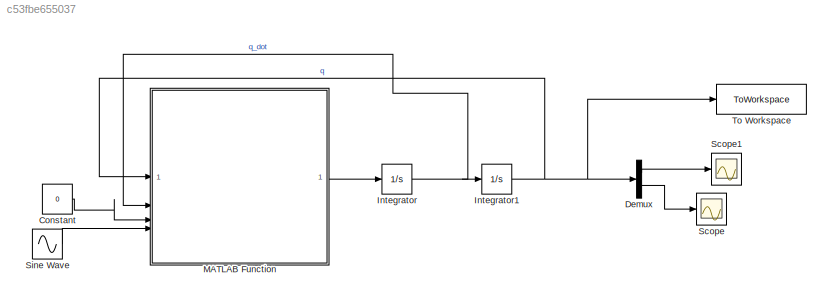
MODEL slx_c53fbe655037
KIND model
CONFIG AbsTol = auto
CONFIG EnableMultiTasking = off
CONFIG FixedStep = 0.1
CONFIG MaxStep = auto
CONFIG MinStep = auto
CONFIG RelTol = 1e-3
CONFIG SampleTimeConstraint = Unconstrained
CONFIG SolverName = ode4
CONFIG StartTime = 0.0
CONFIG StopTime = 130
BLOCK [Constant] Constant
  Value = 0
BLOCK [Demux] Demux
  Outputs = 2
BLOCK [Integrator] Integrator
  InitialCondition = [0,0]
BLOCK [Integrator] Integrator1
  InitialCondition = [12.5,pi/2]
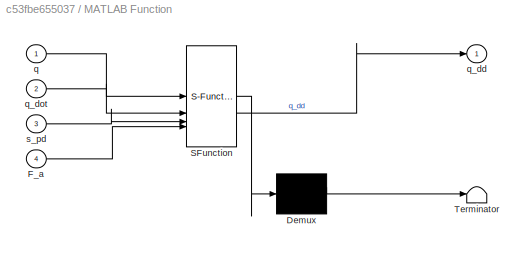
BLOCK [SubSystem] MATLAB Function
  ErrorFcn = Stateflow.Translate.translate
  PermitHierarchicalResolution = ExplicitOnly
  SFBlockType = MATLAB Function
  TreatAsAtomicUnit = on
BLOCK [Demux] MATLAB Function/ Demux 
  Outputs = 1
BLOCK [S-Function] MATLAB Function/ SFunction 
  EnableBusSupport = off
  FunctionName = sf_sfun
  PortCounts = [4 2]
  SFcnIsStateOwnerBlock = off
  SFunctionDeploymentMode = off
  Tag = Stateflow S-Function 2
BLOCK [Terminator] MATLAB Function/ Terminator 
BLOCK [Inport] MATLAB Function/F_a
  Port = 4
BLOCK [Inport] MATLAB Function/q
BLOCK [Outport] MATLAB Function/q_dd
BLOCK [Inport] MATLAB Function/q_dot
  Port = 2
BLOCK [Inport] MATLAB Function/s_pd
  Port = 3
BLOCK [Scope] Scope
  ActiveDisplayYMaximum = 2.7415169332414377
  ActiveDisplayYMinimum = 0.23732835305582234
  Floating = off
  GraphicalSettings = {"Style":{"BackgroundColor":[0.12941176470588237,0.12941176470588237,0.12941176470588237],"AxesColor":[0.07058823529411765,0.07058823529411765,0.07058823529411765],"LabelsColor":[0.8509803921568627,0.8509803921568627,0.8509803921568627],"PreserveColors":false,"Visible":[true],"LineStyle":["-"],"LineWidth":[1.5],"BarWidth":[0.9],"LineColor":["auto"],"LineFaceAlpha":[1],"LineEdgeAlpha":[1],"Marker":...<+1967ch>
  MultipleDisplayCache = [{"MaxYLimMag":10,"MaxYLimReal":2.7415169332414377,"MinYLimMag":0,"MinYLimReal":0.23732835305582234,"PlotAsMagnitudePhase":false,"ShowGrid":true,"ShowLegend":false,"Title":"%<SignalLabel>","YLabel":""}]
  NumInputPorts = 1
  ScopeFrameLocation = window
  WasSavedAsWebScope = on
  WindowPosition = [511.000000,392.000000,560.000000,420.000000,]
BLOCK [Scope] Scope1
  ActiveDisplayYMaximum = 20.676675460256966
  ActiveDisplayYMinimum = 12.081735137627959
  DataLoggingVariableName = ScopeData1
  Floating = off
  GraphicalSettings = {"Style":{"BackgroundColor":[0.12941176470588237,0.12941176470588237,0.12941176470588237],"AxesColor":[0.07058823529411765,0.07058823529411765,0.07058823529411765],"LabelsColor":[0.8509803921568627,0.8509803921568627,0.8509803921568627],"PreserveColors":false,"Visible":[true],"LineStyle":["-"],"LineWidth":[1.5],"BarWidth":[0.9],"LineColor":["auto"],"LineFaceAlpha":[1],"LineEdgeAlpha":[1],"Marker":...<+2031ch>
  MultipleDisplayCache = [{"MaxYLimMag":12.180135566241473,"MaxYLimReal":20.676675460256966,"MinYLimMag":11.125498561634615,"MinYLimReal":12.081735137627959,"PlotAsMagnitudePhase":false,"ShowGrid":true,"ShowLegend":false,"Title":"%<SignalLabel>","YLabel":""}]
  NumInputPorts = 1
  ScopeFrameLocation = window
  WasSavedAsWebScope = on
  WindowPosition = [836.000000,508.000000,560.000000,420.000000,]
BLOCK [Sin] Sine Wave
  Amplitude = 1500
  Frequency = 1.1096
  SampleTime = 0
BLOCK [ToWorkspace] To Workspace
  FixptAsFi = on
  MaxDataPoints = inf
  SampleTime = -1
  VariableName = q
LINE Constant:1 -> MATLAB Function:3
LINE Demux:1 -> Scope1:1
LINE Demux:2 -> Scope:1
NET Integrator1:1 -> Demux:1, MATLAB Function:1, To Workspace:1
NET Integrator:1 -> Integrator1:1, MATLAB Function:2
LINE MATLAB Function:1 -> Integrator:1
LINE Sine Wave:1 -> MATLAB Function:4
note: NET lines group one-source signal fan-out (src -> all destinations, sorted); 1:1 wires keep LINE
CHART MATLAB Function states=1 transitions=1
  STATE_LABEL 'eML_blk_kernel()'
  STATE_LABEL 'SCRIPT:\nfunction q_dd = fcn(q,q_dot,s_pd,F_a)\n\n%constants\ng = 9.81;\nL0 = 30;\nL1 = 25;\nL2 = 10;\nm0 = 10^4;\nm1 = 10^4;\nm2 = 2000;\nm3 = 500;\ndx = 200;\ndw = 2000;\ndphi = 2;\nk_theta = 200;\ntheta_ref = 0;\nd_theta = 10;\nkx = 0;\nLx = 12.5;\n\n%generalised coordinates\n%phi is assumed to be a constant as in the question it mentions this\n%clearly\nx = q(1);\ntheta = q(2);\nphi = s_pd;\nx_dot = q_dot(1);\ntheta_dot=...<+1670ch>'
CHART  states=0 transitions=0
